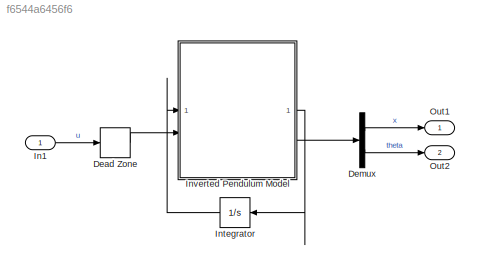
MODEL slx_f6544a6456f6
KIND model
CONFIG AbsTol = auto
CONFIG EnableMultiTasking = off
CONFIG FixedStep = 0.0001
CONFIG MaxStep = 0.0001
CONFIG MinStep = auto
CONFIG RelTol = 1e-4
CONFIG SampleTimeConstraint = Unconstrained
CONFIG SolverName = VariableStepAuto
CONFIG StartTime = 0.0
CONFIG StopTime = 10.0
BLOCK [DeadZone] Dead Zone
  LowerValue = -p_Dz
  UpperValue = p_Dz
BLOCK [Demux] Demux
  Outputs = 2
BLOCK [Inport] In1
BLOCK [Integrator] Integrator
  InitialCondition = [0; 0; 0; 0; 0]
  NameLocation = top
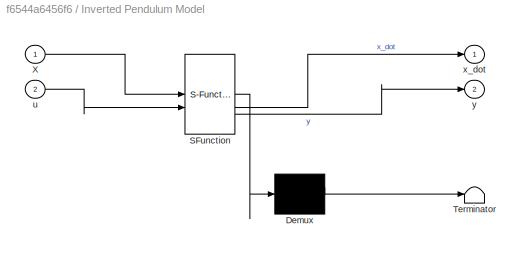
BLOCK [SubSystem] Inverted Pendulum Model
  ErrorFcn = Stateflow.Translate.translate
  PermitHierarchicalResolution = ExplicitOnly
  SFBlockType = MATLAB Function
  TreatAsAtomicUnit = on
BLOCK [Demux] Inverted Pendulum Model/ Demux 
  Outputs = 1
BLOCK [S-Function] Inverted Pendulum Model/ SFunction 
  EnableBusSupport = off
  FunctionName = sf_sfun
  Parameters = p_G,p_Iw,p_Jp,p_Ke,p_Kt,p_La,p_M,p_Ra,p_btheta,p_bx,p_g,p_l,p_m,p_r
  PortCounts = [2 3]
  SFcnIsStateOwnerBlock = off
  SFunctionDeploymentMode = off
  Tag = Stateflow S-Function 2
BLOCK [Terminator] Inverted Pendulum Model/ Terminator 
BLOCK [Inport] Inverted Pendulum Model/X
BLOCK [Inport] Inverted Pendulum Model/u
  Port = 2
BLOCK [Outport] Inverted Pendulum Model/x_dot
BLOCK [Outport] Inverted Pendulum Model/y
  Port = 2
BLOCK [Outport] Out1
BLOCK [Outport] Out2
  Port = 2
LINE Dead Zone:1 -> Inverted Pendulum Model:2
LINE Demux:1 -> Out1:1
LINE Demux:2 -> Out2:1
LINE In1:1 -> Dead Zone:1
LINE Integrator:1 -> Inverted Pendulum Model:1
LINE Inverted Pendulum Model:1 -> Integrator:1
LINE Inverted Pendulum Model:2 -> Demux:1
CHART Inverted Pendulum Model states=1 transitions=1
  STATE_LABEL 'eML_blk_kernel()'
  STATE_LABEL 'SCRIPT:\nfunction [x_dot, y] = pendulum(X, u, p_M, p_m, p_g, p_l, p_r, p_Iw, p_G, p_Jp, p_bx, p_btheta, p_Kt, p_Ke, p_Ra, p_La)\n% 台車型倒立振子の状態空間動力学\n% \n% 入力:\n%   X: 状態ベクトル [x; x_dot; theta; theta_dot; i] (5x1)\n%   u: 入力電圧 V (スカラー)\n%   params: パラメータ構造体\n\nparams = [p_M; p_m; p_g; p_l; p_r; p_Iw; p_G; p_Jp; p_bx; p_btheta; p_Kt; p_Ke; p_Ra; p_La];\n\nx_dot = nonlinear_dynamics(X, u, params);\n\ny = [X(1); X(3...<+8ch>'
CHART  states=0 transitions=0
